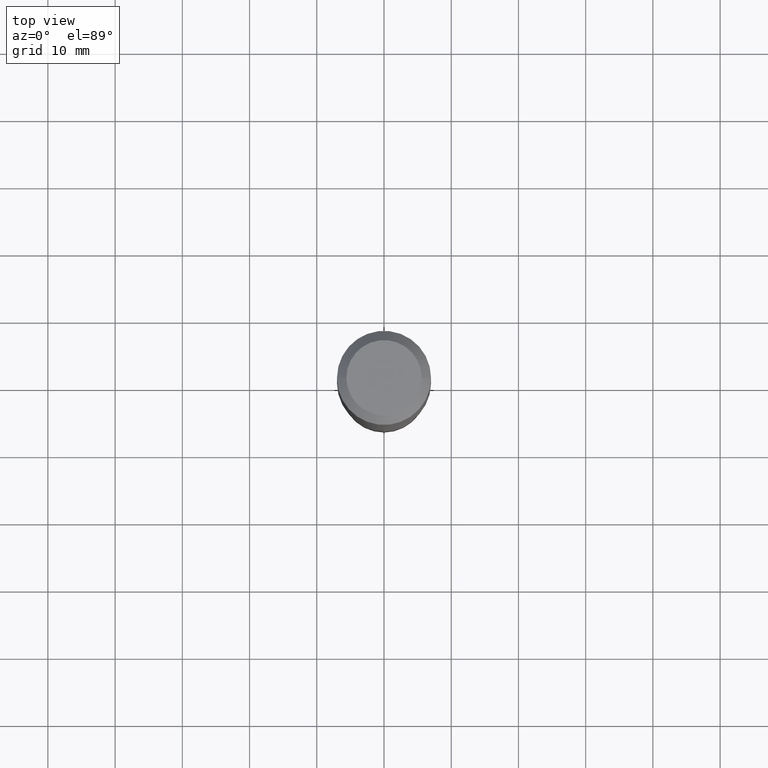
[diagram: clean part render]
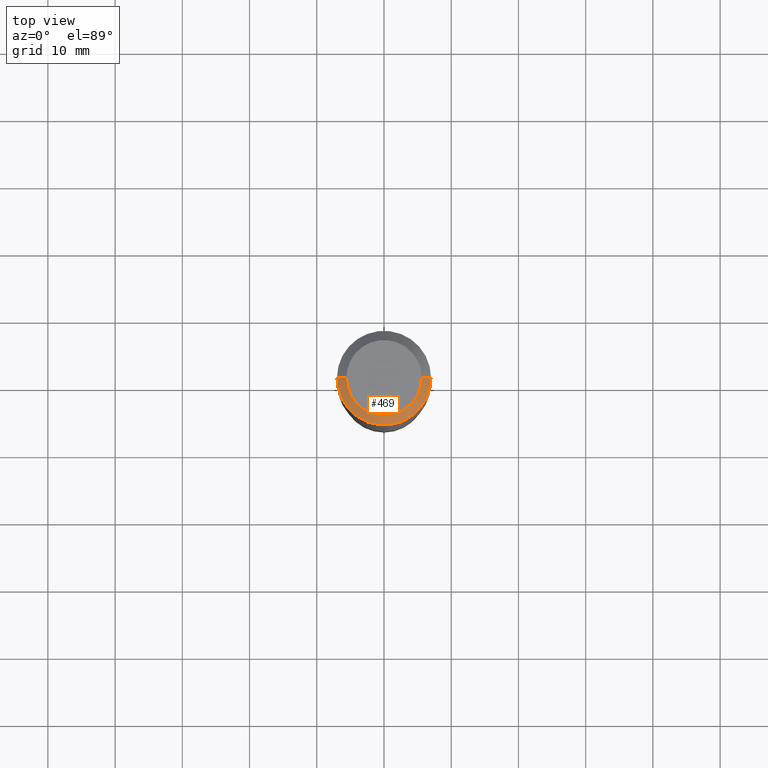
[diagram: same view with one face highlighted and labeled with its STEP entity id]
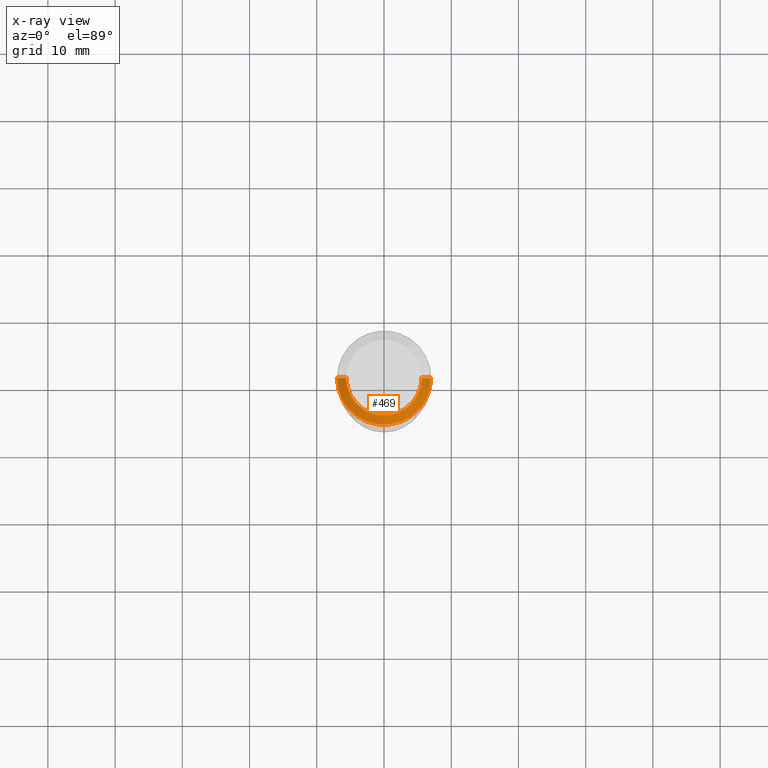
[diagram: x-ray of the same camera — body ghosted, the highlighted face saturated]
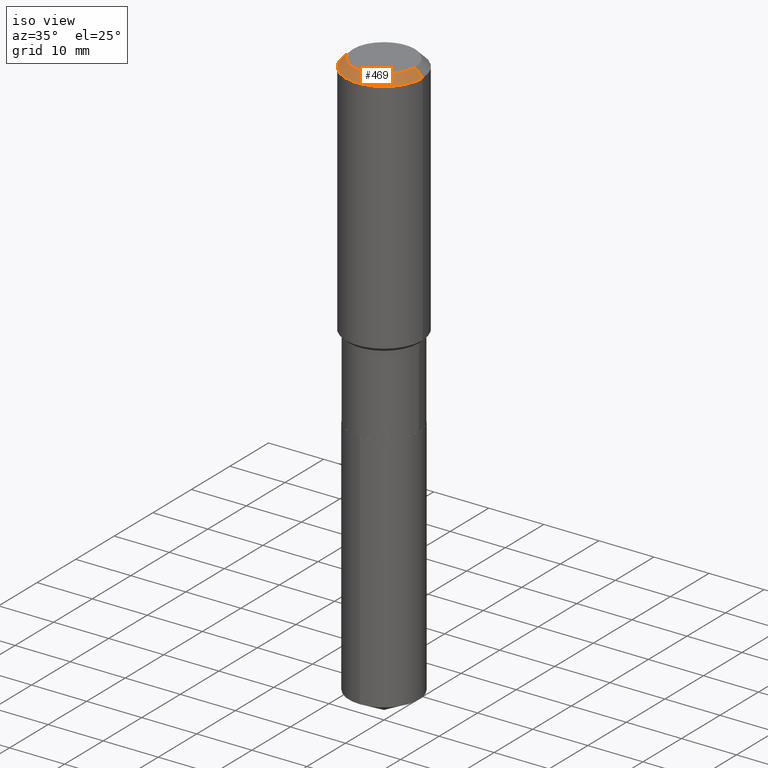
[diagram: same view with one face highlighted and labeled with its STEP entity id]
A machine part, top view. The second image highlights one B-rep face of the part: STEP entity #469.
The next image is the same camera in x-ray: the body ghosted, the highlighted face saturated — about 0% of this face is hidden behind the body in this view.
A second angle (iso view) of the same face is appended — the face is thin or edge-on in the first view.
In plain terms, the highlighted conical surface has half-angle 45 deg.
Its self-contained STEP definition (entity closure, byte-faithful):
#12 = DIRECTION ( 'NONE',  ( 1.000000000000000000, -6.982962677686266711E-15, 4.876132675269083677E-29 ) ) ;
#18 = LINE ( 'NONE', #169, #407 ) ;
#28 = AXIS2_PLACEMENT_3D ( 'NONE', #353, #67, #326 ) ;
#52 = VERTEX_POINT ( 'NONE', #61 ) ;
#61 = CARTESIAN_POINT ( 'NONE',  ( -0.2756000000000000116, -1.192666469297548903E-15, -0.05512000000000035621 ) ) ;
#67 = DIRECTION ( 'NONE',  ( -2.445468806185136597E-29, 3.491481338843145583E-15, 1.000000000000000000 ) ) ;
#88 = LINE ( 'NONE', #380, #454 ) ;
#95 = EDGE_CURVE ( 'NONE', #439, #312, #18, .T. ) ;
#111 = CARTESIAN_POINT ( 'NONE',  ( -9.439721640706190018E-47, 1.347742071746724849E-32, 3.860086710912454339E-18 ) ) ;
#147 = ORIENTED_EDGE ( 'NONE', *, *, #95, .F. ) ;
#169 = CARTESIAN_POINT ( 'NONE',  ( 0.2756000000000000116, -2.083203699582869812E-15, -0.05512000000000035621 ) ) ;
#191 = EDGE_CURVE ( 'NONE', #52, #312, #361, .T. ) ;
#196 = DIRECTION ( 'NONE',  ( -0.7071067811865453523, 2.468850131082234184E-15, -0.7071067811865496822 ) ) ;
#203 = CARTESIAN_POINT ( 'NONE',  ( 0.2756000000000000116, -2.116954965367370658E-15, -0.05512000000000035621 ) ) ;
#222 = AXIS2_PLACEMENT_3D ( 'NONE', #319, #426, #244 ) ;
#244 = DIRECTION ( 'NONE',  ( -1.000000000000000000, 6.982962677686269077E-15, 0.000000000000000000 ) ) ;
#257 = VERTEX_POINT ( 'NONE', #448 ) ;
#275 = ORIENTED_EDGE ( 'NONE', *, *, #323, .F. ) ;
#286 = FACE_OUTER_BOUND ( 'NONE', #302, .T. ) ;
#290 = AXIS2_PLACEMENT_3D ( 'NONE', #111, #350, #12 ) ;
#298 = ORIENTED_EDGE ( 'NONE', *, *, #191, .T. ) ;
#302 = EDGE_LOOP ( 'NONE', ( #147, #275, #344, #298 ) ) ;
#312 = VERTEX_POINT ( 'NONE', #203 ) ;
#318 = DIRECTION ( 'NONE',  ( 0.7071067811865453523, -7.319954787623248157E-15, -0.7071067811865496822 ) ) ;
#319 = CARTESIAN_POINT ( 'NONE',  ( 1.347942405969256063E-30, -1.924504513970354330E-16, -0.05512000000000035621 ) ) ;
#323 = EDGE_CURVE ( 'NONE', #257, #439, #437, .T. ) ;
#326 = DIRECTION ( 'NONE',  ( 1.000000000000000000, -6.982962677686265922E-15, 0.000000000000000000 ) ) ;
#337 = CONICAL_SURFACE ( 'NONE', #222, 0.2756000000000000116, 0.7853981633974452814 ) ;
#344 = ORIENTED_EDGE ( 'NONE', *, *, #376, .T. ) ;
#350 = DIRECTION ( 'NONE',  ( -2.445468806185136597E-29, 3.491481338843145583E-15, 1.000000000000000000 ) ) ;
#353 = CARTESIAN_POINT ( 'NONE',  ( 1.347942405969256063E-30, -1.924504513970354330E-16, -0.05512000000000035621 ) ) ;
#361 = CIRCLE ( 'NONE', #28, 0.2756000000000000116 ) ;
#376 = EDGE_CURVE ( 'NONE', #257, #52, #88, .T. ) ;
#380 = CARTESIAN_POINT ( 'NONE',  ( -0.2756000000000000116, 1.732054062573300039E-15, -0.05512000000000035621 ) ) ;
#407 = VECTOR ( 'NONE', #318, 39.37007874015748143 ) ;
#426 = DIRECTION ( 'NONE',  ( 2.445468806185136597E-29, -3.491481338843145583E-15, -1.000000000000000000 ) ) ;
#437 = CIRCLE ( 'NONE', #290, 0.2204800000000000093 ) ;
#439 = VERTEX_POINT ( 'NONE', #472 ) ;
#448 = CARTESIAN_POINT ( 'NONE',  ( -0.2204800000000000093, 1.635828836874783961E-15, 3.860086710901350968E-18 ) ) ;
#454 = VECTOR ( 'NONE', #196, 39.37007874015748143 ) ;
#469 = ADVANCED_FACE ( 'NONE', ( #286 ), #337, .T. ) ;
#472 = CARTESIAN_POINT ( 'NONE',  ( 0.2204800000000000093, -1.797903149065768707E-15, 3.860086710924123164E-18 ) ) ;